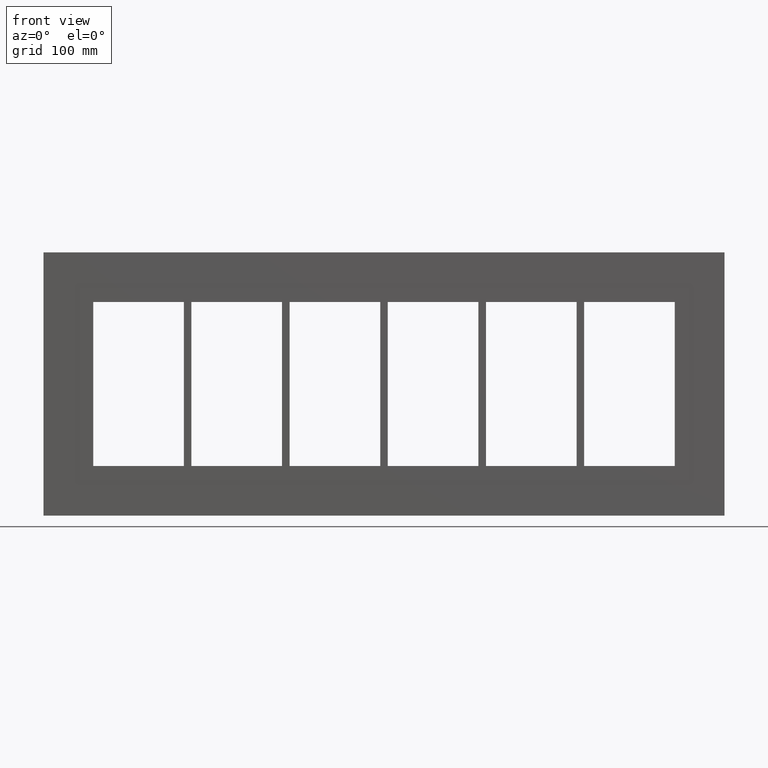
[diagram: clean part render]
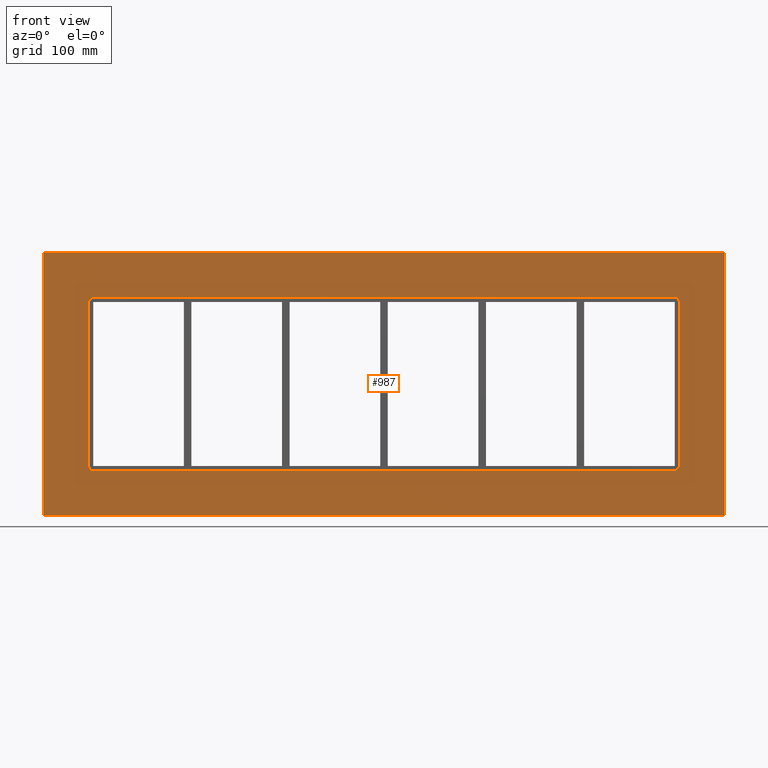
[diagram: same view with one face highlighted and labeled with its STEP entity id]
A machine part, front view. The second image highlights one B-rep face of the part: STEP entity #987.
In plain terms, the highlighted planar face has unit normal (0, 1, 0).
Its self-contained STEP definition (entity closure, byte-faithful):
#878=CARTESIAN_POINT('',(0.0,0.0,-1.358807E-014));
#879=DIRECTION('',(0.0,1.0,0.0));
#880=DIRECTION('',(0.0,0.0,1.0));
#881=AXIS2_PLACEMENT_3D('',#878,#879,#880);
#882=PLANE('',#881);
#883=CARTESIAN_POINT('',(-452.50000000000006,0.0,175.00000000000003));
#884=VERTEX_POINT('',#883);
#885=CARTESIAN_POINT('',(452.50000000000006,0.0,175.00000000000003));
#886=VERTEX_POINT('',#885);
#887=CARTESIAN_POINT('',(-452.50000000000006,0.0,175.00000000000003));
#888=DIRECTION('',(1.0,0.0,0.0));
#889=VECTOR('',#888,905.00000000000011);
#890=LINE('',#887,#889);
#891=EDGE_CURVE('',#884,#886,#890,.T.);
#892=ORIENTED_EDGE('',*,*,#891,.F.);
#893=CARTESIAN_POINT('',(-452.50000000000006,0.0,-175.00000000000006));
#894=VERTEX_POINT('',#893);
#895=CARTESIAN_POINT('',(-452.50000000000006,0.0,-175.00000000000006));
#896=DIRECTION('',(0.0,0.0,1.0));
#897=VECTOR('',#896,350.00000000000011);
#898=LINE('',#895,#897);
#899=EDGE_CURVE('',#894,#884,#898,.T.);
#900=ORIENTED_EDGE('',*,*,#899,.F.);
#901=CARTESIAN_POINT('',(452.50000000000006,0.0,-175.00000000000006));
#902=VERTEX_POINT('',#901);
#903=CARTESIAN_POINT('',(452.50000000000006,0.0,-175.00000000000006));
#904=DIRECTION('',(-1.0,0.0,0.0));
#905=VECTOR('',#904,905.00000000000011);
#906=LINE('',#903,#905);
#907=EDGE_CURVE('',#902,#894,#906,.T.);
#908=ORIENTED_EDGE('',*,*,#907,.F.);
#909=CARTESIAN_POINT('',(452.50000000000006,0.0,175.00000000000003));
#910=DIRECTION('',(0.0,0.0,-1.0));
#911=VECTOR('',#910,350.00000000000011);
#912=LINE('',#909,#911);
#913=EDGE_CURVE('',#886,#902,#912,.T.);
#914=ORIENTED_EDGE('',*,*,#913,.F.);
#915=EDGE_LOOP('',(#892,#900,#908,#914));
#916=FACE_OUTER_BOUND('',#915,.T.);
#917=CARTESIAN_POINT('',(-392.50000000000011,0.0,-108.99999999999999));
#918=VERTEX_POINT('',#917);
#919=CARTESIAN_POINT('',(-386.50000000000011,0.0,-115.0));
#920=VERTEX_POINT('',#919);
#921=CARTESIAN_POINT('',(-386.50000000000011,0.0,-108.99999999999999));
#922=DIRECTION('',(0.0,-1.0,0.0));
#923=DIRECTION('',(-0.707106781186552,0.0,-0.707106781186543));
#924=AXIS2_PLACEMENT_3D('',#921,#922,#923);
#925=CIRCLE('',#924,6.0);
#926=EDGE_CURVE('',#918,#920,#925,.T.);
#927=ORIENTED_EDGE('',*,*,#926,.F.);
#928=CARTESIAN_POINT('',(-392.50000000000011,0.0,108.99999999999999));
#929=VERTEX_POINT('',#928);
#930=CARTESIAN_POINT('',(-392.50000000000011,0.0,109.0));
#931=DIRECTION('',(0.0,0.0,-1.0));
#932=VECTOR('',#931,218.0);
#933=LINE('',#930,#932);
#934=EDGE_CURVE('',#929,#918,#933,.T.);
#935=ORIENTED_EDGE('',*,*,#934,.F.);
#936=CARTESIAN_POINT('',(-386.50000000000023,0.0,115.0));
#937=VERTEX_POINT('',#936);
#938=CARTESIAN_POINT('',(-386.50000000000023,0.0,108.99999999999999));
#939=DIRECTION('',(0.0,-1.0,0.0));
#940=DIRECTION('',(-0.707106781186543,0.0,0.707106781186552));
#941=AXIS2_PLACEMENT_3D('',#938,#939,#940);
#942=CIRCLE('',#941,6.000000000000001);
#943=EDGE_CURVE('',#937,#929,#942,.T.);
#944=ORIENTED_EDGE('',*,*,#943,.F.);
#945=CARTESIAN_POINT('',(386.50000000000006,0.0,115.0));
#946=VERTEX_POINT('',#945);
#947=CARTESIAN_POINT('',(386.50000000000006,0.0,115.0));
#948=DIRECTION('',(-1.0,0.0,0.0));
#949=VECTOR('',#948,773.00000000000023);
#950=LINE('',#947,#949);
#951=EDGE_CURVE('',#946,#937,#950,.T.);
#952=ORIENTED_EDGE('',*,*,#951,.F.);
#953=CARTESIAN_POINT('',(392.50000000000006,0.0,109.0));
#954=VERTEX_POINT('',#953);
#955=CARTESIAN_POINT('',(386.50000000000006,0.0,109.0));
#956=DIRECTION('',(0.0,-1.0,0.0));
#957=DIRECTION('',(0.707106781186545,0.0,0.70710678118655));
#958=AXIS2_PLACEMENT_3D('',#955,#956,#957);
#959=CIRCLE('',#958,6.000000000000001);
#960=EDGE_CURVE('',#954,#946,#959,.T.);
#961=ORIENTED_EDGE('',*,*,#960,.F.);
#962=CARTESIAN_POINT('',(392.50000000000006,0.0,-108.99999999999999));
#963=VERTEX_POINT('',#962);
#964=CARTESIAN_POINT('',(392.50000000000006,0.0,-109.0));
#965=DIRECTION('',(0.0,0.0,1.0));
#966=VECTOR('',#965,218.0);
#967=LINE('',#964,#966);
#968=EDGE_CURVE('',#963,#954,#967,.T.);
#969=ORIENTED_EDGE('',*,*,#968,.F.);
#970=CARTESIAN_POINT('',(386.50000000000006,0.0,-115.0));
#971=VERTEX_POINT('',#970);
#972=CARTESIAN_POINT('',(386.50000000000006,0.0,-108.99999999999999));
#973=DIRECTION('',(0.0,-1.0,0.0));
#974=DIRECTION('',(0.707106781186543,0.0,-0.707106781186552));
#975=AXIS2_PLACEMENT_3D('',#972,#973,#974);
#976=CIRCLE('',#975,6.000000000000001);
#977=EDGE_CURVE('',#971,#963,#976,.T.);
#978=ORIENTED_EDGE('',*,*,#977,.F.);
#979=CARTESIAN_POINT('',(-386.50000000000023,0.0,-115.0));
#980=DIRECTION('',(1.0,0.0,0.0));
#981=VECTOR('',#980,773.00000000000023);
#982=LINE('',#979,#981);
#983=EDGE_CURVE('',#920,#971,#982,.T.);
#984=ORIENTED_EDGE('',*,*,#983,.F.);
#985=EDGE_LOOP('',(#927,#935,#944,#952,#961,#969,#978,#984));
#986=FACE_BOUND('',#985,.T.);
#987=ADVANCED_FACE('',(#916,#986),#882,.F.);